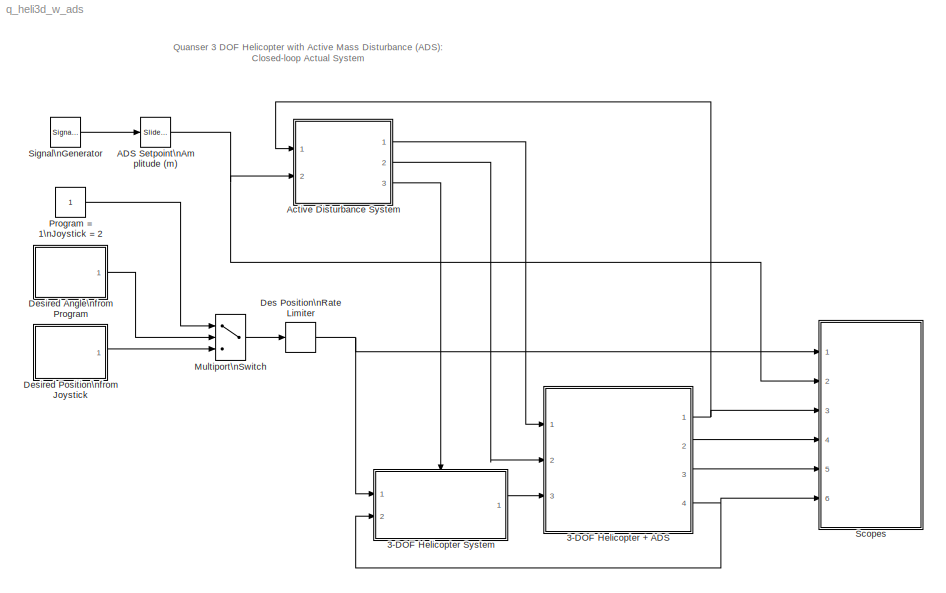
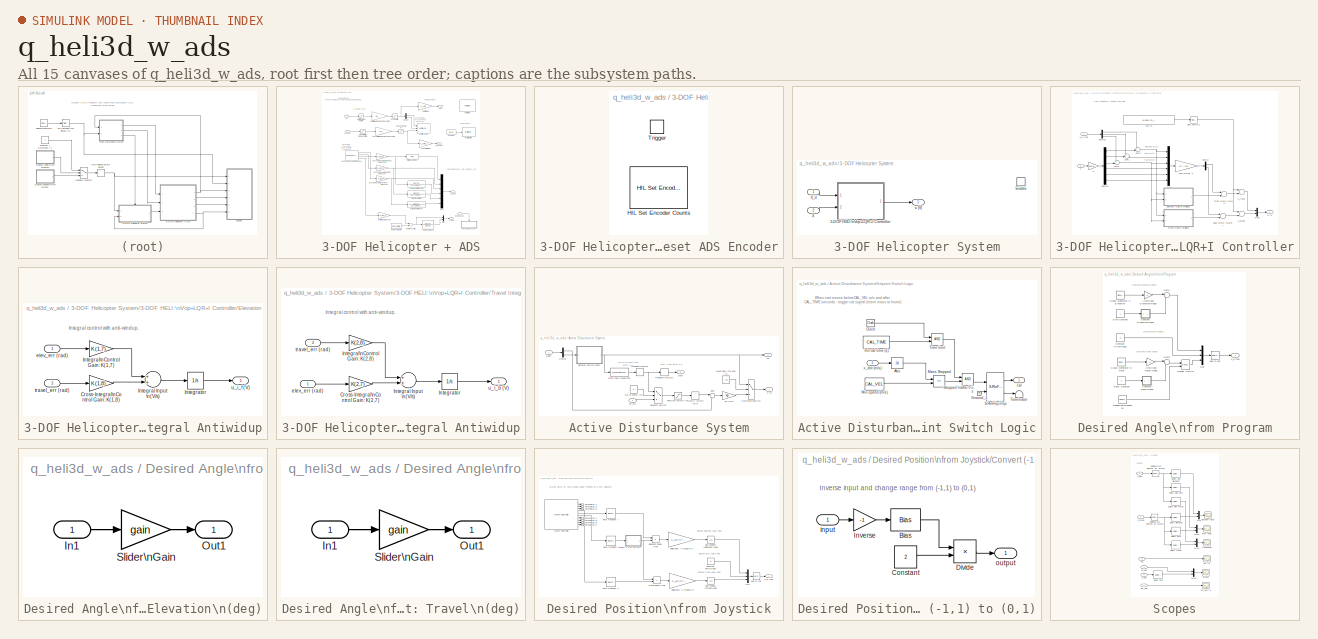
[diagram: thumbnail index - all 15 canvases of the model, root first then tree order]
MODEL q_heli3d_w_ads
KIND model
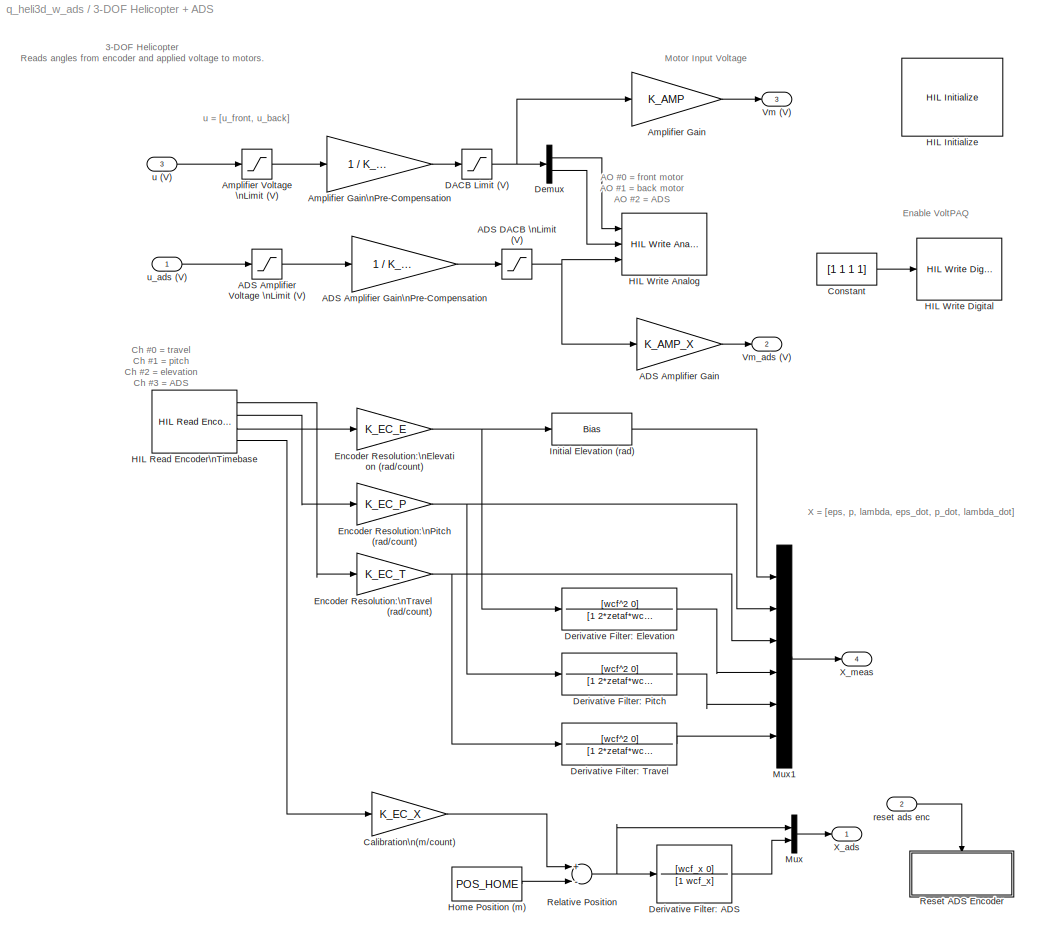
BLOCK [SubSystem] 3-DOF Helicopter + ADS
  FunctionWithSeparateData = off
  MaskHideContents = off
  MinAlgLoopOccurrences = off
  Opaque = off
  Ports = [3, 4]
  PropExecContextOutsideSubsystem = off
  RTWSystemCode = Auto
  RequestExecContextInheritance = off
  SID = 1
BLOCK [Gain] 3-DOF Helicopter + ADS/ADS Amplifier Gain
  Gain = K_AMP_X
  SID = 5
BLOCK [Gain] 3-DOF Helicopter + ADS/ADS Amplifier Gain\nPre-Compensation
  Gain = 1 / K_AMP_X
  SID = 6
BLOCK [Saturate] 3-DOF Helicopter + ADS/ADS Amplifier Voltage \nLimit (V)
  InputPortMap = u0
  LowerLimit = -VMAX_AMP_X
  Ports = [1, 1]
  SID = 7
  UpperLimit = VMAX_AMP_X
BLOCK [Saturate] 3-DOF Helicopter + ADS/ADS DACB \nLimit (V)
  InputPortMap = u0
  LowerLimit = -VMAX_DAC
  Ports = [1, 1]
  SID = 8
  UpperLimit = VMAX_DAC
BLOCK [Gain] 3-DOF Helicopter + ADS/Amplifier Gain
  Gain = K_AMP
  Multiplication = Matrix(K*u)
  SID = 9
BLOCK [Gain] 3-DOF Helicopter + ADS/Amplifier Gain\nPre-Compensation
  Gain = 1 / K_AMP
  Multiplication = Matrix(K*u)
  SID = 10
BLOCK [Saturate] 3-DOF Helicopter + ADS/Amplifier Voltage \nLimit (V)
  InputPortMap = u0
  LowerLimit = -VMAX_AMP
  Ports = [1, 1]
  SID = 11
  UpperLimit = VMAX_AMP
BLOCK [Gain] 3-DOF Helicopter + ADS/Calibration\n(m//count)
  Gain = K_EC_X
  SID = 12
BLOCK [Constant] 3-DOF Helicopter + ADS/Constant
  SID = 13
  Value = [1 1 1 1]
BLOCK [Saturate] 3-DOF Helicopter + ADS/DACB Limit (V)
  InputPortMap = u0
  LowerLimit = -VMAX_DAC
  Ports = [1, 1]
  SID = 14
  UpperLimit = VMAX_DAC
BLOCK [Demux] 3-DOF Helicopter + ADS/Demux
  DisplayOption = bar
  Outputs = 2
  Ports = [1, 2]
  SID = 15
BLOCK [TransferFcn] 3-DOF Helicopter + ADS/Derivative Filter: ADS
  Denominator = [1 wcf_x]
  Numerator = [wcf_x 0]
  SID = 16
BLOCK [TransferFcn] 3-DOF Helicopter + ADS/Derivative Filter: Elevation
  Denominator = [1 2*zetaf*wcf wcf^2]
  Numerator = [wcf^2 0]
  SID = 17
BLOCK [TransferFcn] 3-DOF Helicopter + ADS/Derivative Filter: Pitch
  Denominator = [1 2*zetaf*wcf wcf^2]
  Numerator = [wcf^2 0]
  SID = 18
BLOCK [TransferFcn] 3-DOF Helicopter + ADS/Derivative Filter: Travel
  Denominator = [1 2*zetaf*wcf wcf^2]
  Numerator = [wcf^2 0]
  SID = 19
BLOCK [Gain] 3-DOF Helicopter + ADS/Encoder Resolution:\nElevation (rad//count)
  Gain = K_EC_E
  OutDataTypeStr = Inherit: Inherit via internal rule
  ParamDataTypeStr = Inherit: Inherit via internal rule
  SID = 20
  SaturateOnIntegerOverflow = off
BLOCK [Gain] 3-DOF Helicopter + ADS/Encoder Resolution:\nPitch (rad//count)
  Gain = K_EC_P
  OutDataTypeStr = Inherit: Inherit via internal rule
  ParamDataTypeStr = Inherit: Inherit via internal rule
  SID = 21
  SaturateOnIntegerOverflow = off
BLOCK [Gain] 3-DOF Helicopter + ADS/Encoder Resolution:\nTravel (rad//count)
  Gain = K_EC_T
  OutDataTypeStr = Inherit: Inherit via internal rule
  ParamDataTypeStr = Inherit: Inherit via internal rule
  SID = 22
  SaturateOnIntegerOverflow = off
BLOCK [Reference] 3-DOF Helicopter + ADS/HIL Initialize  REF=quarc_library/Data Acquisition/Generic/Configuration/HIL Initialize
  AttributesFormatString = %<object_name> (%<board_type>-%<board_number>)
  Ports = []
  SID = 23
  SourceBlock = quarc_library/Data Acquisition/Generic/Configuration/HIL Initialize
  SourceType = HIL Initialize
  UserData = DataTag0
  UserDataPersistent = on
  active = on
  analog_input_channels = [0:7]
  analog_input_maximums = 10
  analog_input_minimums = -10
  analog_output_channels = [0:7]
  analog_output_maximums = 10
  analog_output_minimums = -10
  board_number = 0
  board_options = update_rate=normal
  board_type = q8_usb
  clock_modes = []
  digital_input_channels = []
  digital_output_channels = [0:2]
  digital_output_configuration = []
  encoder_channels = [0:7]
  encoder_filter_frequency = []
  exclusive = off
  final_analog_outputs = [0]
  final_digital_outputs = [0 0 0]
  final_other_outputs = []
  final_pwm_outputs = [0]
  hardware_clocks = [0:2]
  initial_analog_outputs = [0]
  initial_clock_frequencies = []
  initial_digital_outputs = [0 0 0]
  initial_encoder_counts = [0]
  initial_other_outputs = []
  initial_pwm_outputs = [0]
  object_name = HIL-1
  other_output_channels = []
  pwm_alignment = [0]
  pwm_channels = [0:7]
  pwm_configuration = [0]
  pwm_frequency = 99.532799999999995e6/4095
  pwm_leading_deadband = [0]
  pwm_modes = 0
  pwm_polarity = [1]
  pwm_trailing_deadband = [0]
  quadrature = [4]
  set_analog_input_params_at_start = on
  set_analog_input_params_at_switch_in = off
  set_analog_output_params_at_start = on
  set_analog_output_params_at_switch_in = off
  set_analog_outputs_at_start = on
  set_analog_outputs_at_switch_in = off
  set_analog_outputs_at_switch_out = off
  set_analog_outputs_at_terminate = on
  set_analog_outputs_on_watchdog = off
  set_clock_frequencies_at_start = off
  set_clock_frequencies_at_switch_in = off
  set_clock_params_at_start = off
  set_clock_params_at_switch_in = off
  set_digital_output_params_at_start = off
  set_digital_output_params_at_switch_in = off
  set_digital_outputs_at_start = on
  set_digital_outputs_at_switch_in = off
  set_digital_outputs_at_switch_out = off
  set_digital_outputs_at_terminate = on
  set_digital_outputs_on_watchdog = off
  set_encoder_counts_at_start = on
  set_encoder_counts_at_switch_in = off
  set_encoder_params_at_start = on
  set_encoder_params_at_switch_in = off
  set_other_outputs_at_start = off
  set_other_outputs_at_switch_in = off
  set_other_outputs_at_switch_out = off
  set_other_outputs_at_terminate = off
  set_other_outputs_on_watchdog = off
  set_pwm_outputs_at_start = on
  set_pwm_outputs_at_switch_in = off
  set_pwm_outputs_at_switch_out = off
  set_pwm_outputs_at_terminate = on
  set_pwm_outputs_on_watchdog = off
  set_pwm_params_at_start = on
  set_pwm_params_at_switch_in = off
  watchdog_analog_outputs = 0
  watchdog_digital_outputs = [1]
  watchdog_other_outputs = []
  watchdog_pwm_outputs = [0]
BLOCK [Reference] 3-DOF Helicopter + ADS/HIL Read Encoder\nTimebase  REF=quarc_library/Data Acquisition/Generic/Timebases/HIL Read Encoder\nTimebase
  AttributesFormatString = (%<object_name>)
  Ports = [0, 4]
  SID = 24
  SourceBlock = quarc_library/Data Acquisition/Generic/Timebases/HIL Read Encoder\nTimebase
  SourceType = HIL Read Encoder Timebase
  UserData = DataTag1
  UserDataPersistent = on
  active = on
  channels = [0:3]
  clock = 0
  data_type = double
  data_type_mode = Inherit via back propagation
  object_name = HIL-1
  samples_in_buffer = max(ceil(1/qc_get_step_size), 1)
  vector_output = off
BLOCK [Reference] 3-DOF Helicopter + ADS/HIL Write Analog  REF=quarc_library/Data Acquisition/Generic/Immediate I//O/HIL Write Analog
  AttributesFormatString = (%<object_name>)
  Ports = [3]
  SID = 25
  SourceBlock = quarc_library/Data Acquisition/Generic/Immediate I//O/HIL Write Analog
  SourceType = HIL Write Analog
  UserData = DataTag2
  UserDataPersistent = on
  active = off
  channels = [0:2]
  object_name = HIL-1
  sample_time = -1
  vector_input = off
BLOCK [Reference] 3-DOF Helicopter + ADS/HIL Write Digital  REF=quarc_library/Data Acquisition/Generic/Immediate I//O/HIL Write Digital
  AttributesFormatString = (%<object_name>)
  Ports = [1]
  SID = 26
  SourceBlock = quarc_library/Data Acquisition/Generic/Immediate I//O/HIL Write Digital
  SourceType = HIL Write Digital
  UserData = DataTag3
  UserDataPersistent = on
  active = off
  channels = [0:3]
  object_name = HIL-1
  sample_time = -1
  vector_input = on
BLOCK [Constant] 3-DOF Helicopter + ADS/Home Position (m)
  SID = 27
  Value = POS_HOME
BLOCK [Bias] 3-DOF Helicopter + ADS/Initial Elevation (rad)
  Bias = elev_0
  SID = 28
  SaturateOnIntegerOverflow = off
BLOCK [Mux] 3-DOF Helicopter + ADS/Mux
  DisplayOption = bar
  Inputs = 2
  Ports = [2, 1]
  SID = 29
BLOCK [Mux] 3-DOF Helicopter + ADS/Mux1
  DisplayOption = bar
  Inputs = 6
  Ports = [6, 1]
  SID = 30
BLOCK [Sum] 3-DOF Helicopter + ADS/Relative Position
  Inputs = +-
  Ports = [2, 1]
  SID = 31
BLOCK [SubSystem] 3-DOF Helicopter + ADS/Reset ADS Encoder
  FunctionWithSeparateData = off
  MaskHideContents = off
  MinAlgLoopOccurrences = off
  Opaque = off
  Ports = [0, 0, 0, 1]
  PropExecContextOutsideSubsystem = off
  RTWSystemCode = Auto
  RequestExecContextInheritance = off
  SID = 32
  TreatAsAtomicUnit = on
BLOCK [Reference] 3-DOF Helicopter + ADS/Reset ADS Encoder/HIL Set Encoder Counts  REF=quarc_library/Data Acquisition/Generic/Configuration/HIL Set Encoder Counts
  AttributesFormatString = (%<object_name>)
  Ports = []
  SID = 34
  SourceBlock = quarc_library/Data Acquisition/Generic/Configuration/HIL Set Encoder Counts
  SourceType = HIL Set Encoder Counts
  UserData = DataTag4
  UserDataPersistent = on
  active = on
  channels = 3
  counts = 0
  object_name = HIL-1
  sample_time = -1
  source = internal
  vector_input = off
BLOCK [TriggerPort] 3-DOF Helicopter + ADS/Reset ADS Encoder/Trigger
  Ports = []
  SID = 33
  StatesWhenEnabling = held
BLOCK [Outport] 3-DOF Helicopter + ADS/Vm (V)
  IconDisplay = Port number
  Port = 3
  SID = 37
BLOCK [Outport] 3-DOF Helicopter + ADS/Vm_ads (V)
  IconDisplay = Port number
  Port = 2
  SID = 36
BLOCK [Outport] 3-DOF Helicopter + ADS/X_ads
  IconDisplay = Port number
  SID = 35
BLOCK [Outport] 3-DOF Helicopter + ADS/X_meas
  IconDisplay = Port number
  Port = 4
  SID = 38
BLOCK [Inport] 3-DOF Helicopter + ADS/reset ads enc
  IconDisplay = Port number
  Port = 2
  SID = 3
BLOCK [Inport] 3-DOF Helicopter + ADS/u (V)
  IconDisplay = Port number
  Port = 3
  SID = 4
BLOCK [Inport] 3-DOF Helicopter + ADS/u_ads (V)
  IconDisplay = Port number
  SID = 2
BLOCK [SubSystem] 3-DOF Helicopter System
  FunctionWithSeparateData = off
  MaskHideContents = off
  MinAlgLoopOccurrences = off
  Opaque = off
  Ports = [2, 1, 1]
  PropExecContextOutsideSubsystem = off
  RTWSystemCode = Auto
  RequestExecContextInheritance = off
  SID = 39
BLOCK [SubSystem] 3-DOF Helicopter System/3-DOF HELI:\nVop+LQR+I Controller
  FunctionWithSeparateData = off
  MaskHideContents = off
  MinAlgLoopOccurrences = off
  Opaque = off
  Ports = [2, 1]
  PropExecContextOutsideSubsystem = off
  RTWSystemCode = Auto
  RequestExecContextInheritance = off
  SID = 43
BLOCK [Gain] 3-DOF Helicopter System/3-DOF HELI:\nVop+LQR+I Controller/-X
  Gain = -eye(6,6)
  Multiplication = Matrix(K*u)
  OutDataTypeStr = Inherit: Inherit via internal rule
  ParamDataTypeStr = Inherit: Inherit via internal rule
  SID = 46
  SaturateOnIntegerOverflow = off
BLOCK [Sum] 3-DOF Helicopter System/3-DOF HELI:\nVop+LQR+I Controller/Back Motor:\nLQR+I
  InputSameDT = off
  OutDataTypeStr = Inherit: Inherit via internal rule
  Ports = [2, 1]
  SID = 47
  SaturateOnIntegerOverflow = off
BLOCK [Reference] 3-DOF Helicopter System/3-DOF HELI:\nVop+LQR+I Controller/Bias Adj\n(V//V)  REF=simulink/Math\nOperations/Slider\nGain
  FunctionWithSeparateData = off
  GeneratePreprocessorConditionals = off
  Ports = [1, 1]
  RTWMemSecDataConstants = Inherit from model
  RTWMemSecDataInternal = Inherit from model
  RTWMemSecDataParameters = Inherit from model
  RTWMemSecFuncExecute = Inherit from model
  RTWMemSecFuncInitTerm = Inherit from model
  SID = 48
  ShowPortLabels = FromPortIcon
  SourceBlock = simulink/Math\nOperations/Slider\nGain
  SourceType = Slider Gain
  SystemSampleTime = -1
  gain = 1
  high = 1
  low = 0
BLOCK [Gain] 3-DOF Helicopter System/3-DOF HELI:\nVop+LQR+I Controller/Control Gain: K
  Gain = K(:,1:6)
  Multiplication = Matrix(K*u)
  OutDataTypeStr = Inherit: Inherit via internal rule
  ParamDataTypeStr = Inherit: Inherit via internal rule
  SID = 49
  SaturateOnIntegerOverflow = off
BLOCK [Demux] 3-DOF Helicopter System/3-DOF HELI:\nVop+LQR+I Controller/Demux
  DisplayOption = bar
  Outputs = 2
  Ports = [1, 2]
  SID = 50
BLOCK [Demux] 3-DOF Helicopter System/3-DOF HELI:\nVop+LQR+I Controller/Demux1
  DisplayOption = bar
  Outputs = 6
  Ports = [1, 6]
  SID = 51
BLOCK [Demux] 3-DOF Helicopter System/3-DOF HELI:\nVop+LQR+I Controller/Demux2
  DisplayOption = bar
  Outputs = 3
  Ports = [1, 3]
  SID = 52
BLOCK [SubSystem] 3-DOF Helicopter System/3-DOF HELI:\nVop+LQR+I Controller/Elevation Integral Antiwidup
  FunctionWithSeparateData = off
  MaskHideContents = off
  MinAlgLoopOccurrences = off
  Opaque = off
  Ports = [2, 1]
  PropExecContextOutsideSubsystem = off
  RTWSystemCode = Auto
  RequestExecContextInheritance = off
  SID = 53
BLOCK [Gain] 3-DOF Helicopter System/3-DOF HELI:\nVop+LQR+I Controller/Elevation Integral Antiwidup/Cross-Integral\nControl Gain: K(1,8)
  Gain = K(1,8)
  Multiplication = Matrix(K*u)
  OutDataTypeStr = Inherit: Inherit via internal rule
  ParamDataTypeStr = Inherit: Inherit via internal rule
  SID = 56
  SaturateOnIntegerOverflow = off
BLOCK [Sum] 3-DOF Helicopter System/3-DOF HELI:\nVop+LQR+I Controller/Elevation Integral Antiwidup/Integral Input \n(V//s)
  InputSameDT = off
  OutDataTypeStr = Inherit: Inherit via internal rule
  Ports = [2, 1]
  SID = 58
  SaturateOnIntegerOverflow = off
BLOCK [Gain] 3-DOF Helicopter System/3-DOF HELI:\nVop+LQR+I Controller/Elevation Integral Antiwidup/Integral\nControl Gain: K(1,7)
  Gain = K(1,7)
  Multiplication = Matrix(K*u)
  OutDataTypeStr = Inherit: Inherit via internal rule
  ParamDataTypeStr = Inherit: Inherit via internal rule
  SID = 57
  SaturateOnIntegerOverflow = off
BLOCK [Integrator] 3-DOF Helicopter System/3-DOF HELI:\nVop+LQR+I Controller/Elevation Integral Antiwidup/Integrator
  LimitOutput = on
  LowerSaturationLimit = -SAT_INT_ERR_ELEV
  Ports = [1, 1]
  SID = 59
  UpperSaturationLimit = SAT_INT_ERR_ELEV
BLOCK [Inport] 3-DOF Helicopter System/3-DOF HELI:\nVop+LQR+I Controller/Elevation Integral Antiwidup/elev_err (rad)
  IconDisplay = Port number
  SID = 54
BLOCK [Inport] 3-DOF Helicopter System/3-DOF HELI:\nVop+LQR+I Controller/Elevation Integral Antiwidup/travel_err (rad)
  IconDisplay = Port number
  Port = 2
  SID = 55
BLOCK [Outport] 3-DOF Helicopter System/3-DOF HELI:\nVop+LQR+I Controller/Elevation Integral Antiwidup/u_i_f (V)
  IconDisplay = Port number
  SID = 60
BLOCK [Sum] 3-DOF Helicopter System/3-DOF HELI:\nVop+LQR+I Controller/Front Motor:\nLQR+I
  InputSameDT = off
  OutDataTypeStr = Inherit: Inherit via internal rule
  Ports = [2, 1]
  SID = 61
  SaturateOnIntegerOverflow = off
BLOCK [Mux] 3-DOF Helicopter System/3-DOF HELI:\nVop+LQR+I Controller/Mux
  DisplayOption = bar
  Inputs = 6
  Ports = [6, 1]
  SID = 62
BLOCK [Mux] 3-DOF Helicopter System/3-DOF HELI:\nVop+LQR+I Controller/Mux1
  DisplayOption = bar
  Inputs = 2
  Ports = [2, 1]
  SID = 63
BLOCK [Sum] 3-DOF Helicopter System/3-DOF HELI:\nVop+LQR+I Controller/Sum1
  IconShape = round
  InputSameDT = off
  Inputs = ++|
  OutDataTypeStr = Inherit: Inherit via internal rule
  Ports = [2, 1]
  SID = 64
  SaturateOnIntegerOverflow = off
BLOCK [Sum] 3-DOF Helicopter System/3-DOF HELI:\nVop+LQR+I Controller/Sum2
  IconShape = round
  InputSameDT = off
  Inputs = ++|
  OutDataTypeStr = Inherit: Inherit via internal rule
  Ports = [2, 1]
  SID = 65
  SaturateOnIntegerOverflow = off
BLOCK [Sum] 3-DOF Helicopter System/3-DOF HELI:\nVop+LQR+I Controller/Sum3
  IconShape = round
  InputSameDT = off
  Inputs = ++|
  OutDataTypeStr = Inherit: Inherit via internal rule
  Ports = [2, 1]
  SID = 66
  SaturateOnIntegerOverflow = off
BLOCK [SubSystem] 3-DOF Helicopter System/3-DOF HELI:\nVop+LQR+I Controller/Travel Integral Antiwidup
  FunctionWithSeparateData = off
  MaskHideContents = off
  MinAlgLoopOccurrences = off
  Opaque = off
  Ports = [2, 1]
  PropExecContextOutsideSubsystem = off
  RTWSystemCode = Auto
  RequestExecContextInheritance = off
  SID = 67
BLOCK [Gain] 3-DOF Helicopter System/3-DOF HELI:\nVop+LQR+I Controller/Travel Integral Antiwidup/Cross-Integral\nControl Gain: K(2,7)
  Gain = K(2,7)
  Multiplication = Matrix(K*u)
  OutDataTypeStr = Inherit: Inherit via internal rule
  ParamDataTypeStr = Inherit: Inherit via internal rule
  SID = 70
  SaturateOnIntegerOverflow = off
BLOCK [Sum] 3-DOF Helicopter System/3-DOF HELI:\nVop+LQR+I Controller/Travel Integral Antiwidup/Integral Input \n(V//s)
  InputSameDT = off
  OutDataTypeStr = Inherit: Inherit via internal rule
  Ports = [2, 1]
  SID = 72
  SaturateOnIntegerOverflow = off
BLOCK [Gain] 3-DOF Helicopter System/3-DOF HELI:\nVop+LQR+I Controller/Travel Integral Antiwidup/Integral\nControl Gain: K(2,8)
  Gain = K(2,8)
  Multiplication = Matrix(K*u)
  OutDataTypeStr = Inherit: Inherit via internal rule
  ParamDataTypeStr = Inherit: Inherit via internal rule
  SID = 71
  SaturateOnIntegerOverflow = off
BLOCK [Integrator] 3-DOF Helicopter System/3-DOF HELI:\nVop+LQR+I Controller/Travel Integral Antiwidup/Integrator
  LimitOutput = on
  LowerSaturationLimit = -SAT_INT_ERR_TRAVEL
  Ports = [1, 1]
  SID = 73
  UpperSaturationLimit = SAT_INT_ERR_TRAVEL
BLOCK [Inport] 3-DOF Helicopter System/3-DOF HELI:\nVop+LQR+I Controller/Travel Integral Antiwidup/elev_err (rad)
  IconDisplay = Port number
  SID = 68
BLOCK [Inport] 3-DOF Helicopter System/3-DOF HELI:\nVop+LQR+I Controller/Travel Integral Antiwidup/travel_err (rad)
  IconDisplay = Port number
  Port = 2
  SID = 69
BLOCK [Outport] 3-DOF Helicopter System/3-DOF HELI:\nVop+LQR+I Controller/Travel Integral Antiwidup/u_i_b (V)
  IconDisplay = Port number
  SID = 74
BLOCK [Constant] 3-DOF Helicopter System/3-DOF HELI:\nVop+LQR+I Controller/Vop (V)
  SID = 75
  Value = -1/2*g*(-m_w*Lw + m_f*La + m_b*La ) / (La*Kf)
BLOCK [Inport] 3-DOF Helicopter System/3-DOF HELI:\nVop+LQR+I Controller/X
  IconDisplay = Port number
  Port = 2
  SID = 45
BLOCK [Inport] 3-DOF Helicopter System/3-DOF HELI:\nVop+LQR+I Controller/X_d (rad)
  IconDisplay = Port number
  SID = 44
BLOCK [Outport] 3-DOF Helicopter System/3-DOF HELI:\nVop+LQR+I Controller/u (V)
  IconDisplay = Port number
  SID = 78
BLOCK [Sum] 3-DOF Helicopter System/3-DOF HELI:\nVop+LQR+I Controller/u_b+Vop
  InputSameDT = off
  OutDataTypeStr = Inherit: Inherit via internal rule
  Ports = [2, 1]
  SID = 76
  SaturateOnIntegerOverflow = off
BLOCK [Sum] 3-DOF Helicopter System/3-DOF HELI:\nVop+LQR+I Controller/u_f+Vop
  InputSameDT = off
  OutDataTypeStr = Inherit: Inherit via internal rule
  Ports = [2, 1]
  SID = 77
  SaturateOnIntegerOverflow = off
BLOCK [EnablePort] 3-DOF Helicopter System/Enable
  Ports = []
  SID = 42
BLOCK [Inport] 3-DOF Helicopter System/X
  IconDisplay = Port number
  Port = 2
  SID = 41
BLOCK [Inport] 3-DOF Helicopter System/X_d
  IconDisplay = Port number
  SID = 40
BLOCK [Outport] 3-DOF Helicopter System/u (V)
  IconDisplay = Port number
  InitialOutput = [0,0]
  OutputWhenDisabled = reset
  SID = 79
BLOCK [Reference] ADS Setpoint\nAmplitude (m)  REF=simulink/Math\nOperations/Slider\nGain
  FunctionWithSeparateData = off
  GeneratePreprocessorConditionals = off
  Ports = [1, 1]
  RTWMemSecDataConstants = Inherit from model
  RTWMemSecDataInternal = Inherit from model
  RTWMemSecDataParameters = Inherit from model
  RTWMemSecFuncExecute = Inherit from model
  RTWMemSecFuncInitTerm = Inherit from model
  SID = 80
  ShowPortLabels = FromPortIcon
  SourceBlock = simulink/Math\nOperations/Slider\nGain
  SourceType = Slider Gain
  SystemSampleTime = -1
  gain = 0.10963
  high = 0.13
  low = 0
BLOCK [SubSystem] Active Disturbance System
  FunctionWithSeparateData = off
  MaskHideContents = off
  MinAlgLoopOccurrences = off
  Opaque = off
  Ports = [2, 3]
  PropExecContextOutsideSubsystem = off
  RTWSystemCode = Auto
  RequestExecContextInheritance = off
  SID = 81
BLOCK [MultiPortSwitch] Active Disturbance System/Calibrate\nSwitch
  DataPortOrder = Zero-based contiguous
  Inputs = 2
  Ports = [3, 1]
  SID = 84
  zeroidx = on
BLOCK [DataTypeConversion] Active Disturbance System/Data Type Conversion
  RndMeth = Floor
  SID = 85
  SaturateOnIntegerOverflow = off
BLOCK [Demux] Active Disturbance System/Demux
  DisplayOption = bar
  Outputs = 2
  Ports = [1, 2]
  SID = 86
BLOCK [Constant] Active Disturbance System/Go to center (m)
  SID = 87
  Value = 0
BLOCK [Constant] Active Disturbance System/Move back \nto end (V)
  SID = 88
  Value = -2.5
BLOCK [Saturate] Active Disturbance System/Position \nLimit (m)
  InputPortMap = u0
  LowerLimit = -X_MAX
  Ports = [1, 1]
  SID = 89
  UpperLimit = X_MAX
BLOCK [MultiPortSwitch] Active Disturbance System/Setpoint Switch
  DataPortOrder = Zero-based contiguous
  Inputs = 2
  Ports = [3, 1]
  SID = 90
  SampleTime = qc_get_step_size
  zeroidx = on
BLOCK [SubSystem] Active Disturbance System/Setpoint Switch Logic
  FunctionWithSeparateData = off
  MaskHideContents = off
  MinAlgLoopOccurrences = off
  Opaque = off
  Ports = [1, 1]
  PropExecContextOutsideSubsystem = off
  RTWSystemCode = Auto
  RequestExecContextInheritance = off
  SID = 91
BLOCK [Abs] Active Disturbance System/Setpoint Switch Logic/Abs
  SID = 93
BLOCK [Clock] Active Disturbance System/Setpoint Switch Logic/Clock
  Decimation = 10
  SID = 94
BLOCK [Ground] Active Disturbance System/Setpoint Switch Logic/Ground_1
  SID = 95
BLOCK [Constant] Active Disturbance System/Setpoint Switch Logic/Init Cal time (s)
  SID = 96
  Value = CAL_TIME
BLOCK [RelationalOperator] Active Disturbance System/Setpoint Switch Logic/Mass Stopped
  Operator = <=
  Ports = [2, 1]
  SID = 97
BLOCK [Constant] Active Disturbance System/Setpoint Switch Logic/Min speed (m//s)
  SID = 98
  Value = CAL_VEL
BLOCK [Reference] Active Disturbance System/Setpoint Switch Logic/S-R\nFlip-Flop  REF=simulink_extras/Flip Flops/S-R\nFlip-Flop
  FunctionWithSeparateData = off
  GeneratePreprocessorConditionals = off
  Ports = [2, 2]
  RTWMemSecDataConstants = Inherit from model
  RTWMemSecDataInternal = Inherit from model
  RTWMemSecDataParameters = Inherit from model
  RTWMemSecFuncExecute = Inherit from model
  RTWMemSecFuncInitTerm = Inherit from model
  SID = 99
  ShowPortLabels = FromPortIcon
  SourceBlock = simulink_extras/Flip Flops/S-R\nFlip-Flop
  SourceType = SRFlipFlop
  SystemSampleTime = -1
  initial_condition = 0
BLOCK [Logic] Active Disturbance System/Setpoint Switch Logic/Stopped \nafter 0.5 s
  Ports = [2, 1]
  SID = 100
BLOCK [Terminator] Active Disturbance System/Setpoint Switch Logic/Terminator
  SID = 101
BLOCK [RelationalOperator] Active Disturbance System/Setpoint Switch Logic/Time limit
  Ports = [2, 1]
  SID = 102
BLOCK [Outport] Active Disturbance System/Setpoint Switch Logic/cal
  IconDisplay = Port number
  SID = 103
BLOCK [Inport] Active Disturbance System/Setpoint Switch Logic/x_dot (m//s)
  IconDisplay = Port number
  SID = 92
BLOCK [Sum] Active Disturbance System/Sum
  IconShape = round
  InputSameDT = off
  Inputs = |+-
  OutDataTypeStr = Inherit: Inherit via internal rule
  Ports = [2, 1]
  SID = 104
  SaturateOnIntegerOverflow = off
BLOCK [TransportDelay] Active Disturbance System/Transport\nDelay
  DelayTime = 2
  Ports = [1, 1]
  SID = 105
BLOCK [TransportDelay] Active Disturbance System/Transport\nDelay1
  DelayTime = 2
  Ports = [1, 1]
  SID = 106
BLOCK [RateLimiter] Active Disturbance System/Velocity \nLimit (m//s)
  FallingSlewLimit = -V_MAX
  RisingSlewLimit = V_MAX
  SID = 107
BLOCK [Inport] Active Disturbance System/X_ads
  IconDisplay = Port number
  SID = 82
BLOCK [Outport] Active Disturbance System/cal
  IconDisplay = Port number
  Port = 2
  SID = 110
BLOCK [Gain] Active Disturbance System/kp (V//m)
  Gain = kp
  SID = 108
BLOCK [Outport] Active Disturbance System/start
  IconDisplay = Port number
  Port = 3
  SID = 111
BLOCK [Outport] Active Disturbance System/u (V)
  IconDisplay = Port number
  SID = 109
BLOCK [Inport] Active Disturbance System/xd (m)
  IconDisplay = Port number
  Port = 2
  SID = 83
BLOCK [RateLimiter] Des Position\nRate Limiter
  FallingSlewLimit = -CMD_RATE_LIMIT
  RisingSlewLimit = CMD_RATE_LIMIT
  SID = 112
  SampleTimeMode = inherited
BLOCK [SubSystem] Desired Angle\nfrom Program
  FunctionWithSeparateData = off
  MaskHideContents = off
  MinAlgLoopOccurrences = off
  Opaque = off
  Ports = [0, 1]
  PropExecContextOutsideSubsystem = off
  RTWSystemCode = Auto
  RequestExecContextInheritance = off
  SID = 216
BLOCK [Gain] Desired Angle\nfrom Program/Amplitude: Elevation\n(deg)
  Gain = 0
  OutDataTypeStr = Inherit: Inherit via internal rule
  ParamDataTypeStr = Inherit: Inherit via internal rule
  SID = 217
  SaturateOnIntegerOverflow = off
BLOCK [Gain] Desired Angle\nfrom Program/Amplitude: Travel\n(deg)
  Gain = 0
  OutDataTypeStr = Inherit: Inherit via internal rule
  ParamDataTypeStr = Inherit: Inherit via internal rule
  SID = 218
  SaturateOnIntegerOverflow = off
BLOCK [SubSystem] Desired Angle\nfrom Program/Constant: Elevation\n(deg)
  CloseFcn = slideg Close
  CopyFcn = slideg Copy
  DeleteFcn = slideg DeleteBlock
  FunctionWithSeparateData = off
  LoadFcn = slideg Load
  MaskCallbackString = ||
  MaskCapabilities = slmaskedcaps(gcbh)
  MaskDisplay = disp(gain)
  MaskEnableString = on,on,on
  MaskHideContents = off
  MaskIconFrame = on
  MaskIconOpaque = on
  MaskIconRotate = none
  MaskIconUnits = autoscale
  MaskPortRotate = default
  MaskPromptString = Low|Gain|High
  MaskStyleString = edit,edit,edit
  MaskToolTipString = on,on,on
  MaskTunableValueString = on,on,on
  MaskType = Slider Gain
  MaskValueString = -27.5|-27.5|30
  MaskVariables = low=@1;gain=@2;high=@3;
  MaskVisibilityString = on,on,on
  MinAlgLoopOccurrences = off
  NameChangeFcn = slideg NameChange
  Opaque = off
  OpenFcn = slideg Open
  ParentCloseFcn = slideg ParentClose
  Ports = [1, 1]
  PropExecContextOutsideSubsystem = off
  RTWSystemCode = Auto
  RequestExecContextInheritance = off
  SID = 219
  StartFcn = slideg StartFcn
  StopFcn = slideg StopFcn
BLOCK [Inport] Desired Angle\nfrom Program/Constant: Elevation\n(deg)/In1
  IconDisplay = Port number
  SID = 220
BLOCK [Outport] Desired Angle\nfrom Program/Constant: Elevation\n(deg)/Out1
  IconDisplay = Port number
  SID = 222
BLOCK [Gain] Desired Angle\nfrom Program/Constant: Elevation\n(deg)/Slider\nGain
  Gain = gain
  SID = 221
BLOCK [Constant] Desired Angle\nfrom Program/Constant: Pitch\n(deg)
  SID = 223
  Value = 0
BLOCK [SubSystem] Desired Angle\nfrom Program/Constant: Travel\n(deg)
  CloseFcn = slideg Close
  CopyFcn = slideg Copy
  DeleteFcn = slideg DeleteBlock
  FunctionWithSeparateData = off
  LoadFcn = slideg Load
  MaskCallbackString = ||
  MaskCapabilities = slmaskedcaps(gcbh)
  MaskDisplay = disp(gain)
  MaskEnableString = on,on,on
  MaskHideContents = off
  MaskIconFrame = on
  MaskIconOpaque = on
  MaskIconRotate = none
  MaskIconUnits = autoscale
  MaskPortRotate = default
  MaskPromptString = Low|Gain|High
  MaskStyleString = edit,edit,edit
  MaskToolTipString = on,on,on
  MaskTunableValueString = on,on,on
  MaskType = Slider Gain
  MaskValueString = -90|0|90
  MaskVariables = low=@1;gain=@2;high=@3;
  MaskVisibilityString = on,on,on
  MinAlgLoopOccurrences = off
  NameChangeFcn = slideg NameChange
  Opaque = off
  OpenFcn = slideg Open
  ParentCloseFcn = slideg ParentClose
  Ports = [1, 1]
  PropExecContextOutsideSubsystem = off
  RTWSystemCode = Auto
  RequestExecContextInheritance = off
  SID = 224
  StartFcn = slideg StartFcn
  StopFcn = slideg StopFcn
BLOCK [Inport] Desired Angle\nfrom Program/Constant: Travel\n(deg)/In1
  IconDisplay = Port number
  SID = 225
BLOCK [Outport] Desired Angle\nfrom Program/Constant: Travel\n(deg)/Out1
  IconDisplay = Port number
  SID = 227
BLOCK [Gain] Desired Angle\nfrom Program/Constant: Travel\n(deg)/Slider\nGain
  Gain = gain
  SID = 226
BLOCK [Constant] Desired Angle\nfrom Program/Elev Constant
  SID = 228
BLOCK [Reference] Desired Angle\nfrom Program/Manual Switch  REF=simulink/Signal\nRouting/Manual Switch
  FunctionWithSeparateData = off
  GeneratePreprocessorConditionals = off
  Ports = [2, 1]
  RTWMemSecDataConstants = Inherit from model
  RTWMemSecDataInternal = Inherit from model
  RTWMemSecDataParameters = Inherit from model
  RTWMemSecFuncExecute = Inherit from model
  RTWMemSecFuncInitTerm = Inherit from model
  SID = 229
  ShowPortLabels = FromPortIcon
  SourceBlock = simulink/Signal\nRouting/Manual Switch
  SourceType = Manual Switch
  SystemSampleTime = -1
  action = 0
  sw = 1
  varsize = off
BLOCK [Mux] Desired Angle\nfrom Program/Mux
  DisplayOption = bar
  Inputs = 3
  Ports = [3, 1]
  SID = 230
BLOCK [Reference] Desired Angle\nfrom Program/Repeating\nSequence  REF=simulink/Sources/Repeating\nSequence
  FunctionWithSeparateData = off
  GeneratePreprocessorConditionals = off
  Ports = [0, 1]
  RTWMemSecDataConstants = Inherit from model
  RTWMemSecDataInternal = Inherit from model
  RTWMemSecDataParameters = Inherit from model
  RTWMemSecFuncExecute = Inherit from model
  RTWMemSecFuncInitTerm = Inherit from model
  SID = 231
  ShowPortLabels = FromPortIcon
  SourceBlock = simulink/Sources/Repeating\nSequence
  SourceType = Repeating table
  SystemSampleTime = -1
  rep_seq_t = [0  15 16  30  45  46 60 ]
  rep_seq_y = [0 0 30 30  30 0 0 ]
BLOCK [SignalGenerator] Desired Angle\nfrom Program/Signal Generator:\nElevation
  Frequency = 0.04
  Ports = [0, 1]
  SID = 232
  WaveForm = square
BLOCK [SignalGenerator] Desired Angle\nfrom Program/Signal Generator:\nTravel
  Frequency = 0.03
  Ports = [0, 1]
  SID = 233
  WaveForm = square
BLOCK [Sum] Desired Angle\nfrom Program/Sum1
  IconShape = round
  InputSameDT = off
  Inputs = |++
  OutDataTypeStr = Inherit: Inherit via internal rule
  Ports = [2, 1]
  SID = 234
  SaturateOnIntegerOverflow = off
BLOCK [Sum] Desired Angle\nfrom Program/Sum2
  IconShape = round
  InputSameDT = off
  Inputs = |++
  OutDataTypeStr = Inherit: Inherit via internal rule
  Ports = [2, 1]
  SID = 235
  SaturateOnIntegerOverflow = off
BLOCK [Constant] Desired Angle\nfrom Program/Travel Constant
  SID = 236
BLOCK [Reference] Desired Angle\nfrom Program/deg to rad  REF=simulink_extras/Transformations/Degrees to\nRadians
  FunctionWithSeparateData = off
  GeneratePreprocessorConditionals = off
  Ports = [1, 1]
  RTWMemSecDataConstants = Inherit from model
  RTWMemSecDataInternal = Inherit from model
  RTWMemSecDataParameters = Inherit from model
  RTWMemSecFuncExecute = Inherit from model
  RTWMemSecFuncInitTerm = Inherit from model
  SID = 237
  ShowPortLabels = FromPortIcon
  SourceBlock = simulink_extras/Transformations/Degrees to\nRadians
  SourceType = DegreesToRadians
  SystemSampleTime = -1
BLOCK [Outport] Desired Angle\nfrom Program/x_d (rad)
  IconDisplay = Port number
  SID = 238
BLOCK [SubSystem] Desired Position\nfrom Joystick
  FunctionWithSeparateData = off
  MaskHideContents = off
  MinAlgLoopOccurrences = off
  Opaque = off
  Ports = [0, 1]
  PropExecContextOutsideSubsystem = off
  RTWSystemCode = Auto
  RequestExecContextInheritance = off
  SID = 239
BLOCK [Gain] Desired Position\nfrom Joystick/Calibration: X \n(deg//s//V)
  Gain = K_JOYSTICK_X
  OutDataTypeStr = Inherit: Inherit via internal rule
  ParamDataTypeStr = Inherit: Inherit via internal rule
  SID = 240
  SaturateOnIntegerOverflow = off
BLOCK [Gain] Desired Position\nfrom Joystick/Calibration: Y \n(deg//s//V)
  Gain = K_JOYSTICK_Y
  OutDataTypeStr = Inherit: Inherit via internal rule
  ParamDataTypeStr = Inherit: Inherit via internal rule
  SID = 241
  SaturateOnIntegerOverflow = off
BLOCK [Constant] Desired Position\nfrom Joystick/Constant: Pitch\n(deg)
  SID = 242
  Value = 0
BLOCK [SubSystem] Desired Position\nfrom Joystick/Convert (-1,1) to (0,1)
  FunctionWithSeparateData = off
  MaskHideContents = off
  MinAlgLoopOccurrences = off
  Opaque = off
  Ports = [1, 1]
  PropExecContextOutsideSubsystem = off
  RTWSystemCode = Auto
  RequestExecContextInheritance = off
  SID = 243
BLOCK [Bias] Desired Position\nfrom Joystick/Convert (-1,1) to (0,1)/Bias
  Bias = 1
  SID = 245
  SaturateOnIntegerOverflow = off
BLOCK [Constant] Desired Position\nfrom Joystick/Convert (-1,1) to (0,1)/Constant
  SID = 246
  Value = 2
BLOCK [Product] Desired Position\nfrom Joystick/Convert (-1,1) to (0,1)/Divide
  InputSameDT = off
  Inputs = */
  OutDataTypeStr = Inherit: Inherit via internal rule
  Ports = [2, 1]
  RndMeth = Floor
  SID = 247
  SaturateOnIntegerOverflow = off
BLOCK [Gain] Desired Position\nfrom Joystick/Convert (-1,1) to (0,1)/Inverse
  Gain = -1
  OutDataTypeStr = Inherit: Inherit via internal rule
  ParamDataTypeStr = Inherit: Inherit via internal rule
  SID = 248
  SaturateOnIntegerOverflow = off
BLOCK [Inport] Desired Position\nfrom Joystick/Convert (-1,1) to (0,1)/input
  IconDisplay = Port number
  SID = 244
BLOCK [Outport] Desired Position\nfrom Joystick/Convert (-1,1) to (0,1)/output
  IconDisplay = Port number
  SID = 249
BLOCK [Integrator] Desired Position\nfrom Joystick/Des Position: \nElevation (deg)
  InitialCondition = elev_0*180/pi
  LimitOutput = on
  LowerSaturationLimit = CMD_ELEV_POS_LIMIT_LOWER
  Ports = [1, 1]
  SID = 250
  UpperSaturationLimit = CMD_ELEV_POS_LIMIT_UPPER
BLOCK [Integrator] Desired Position\nfrom Joystick/Des Position: \nTravel (deg)
  LowerSaturationLimit = CMD_TRAVEL_POS_LIMIT_LOWER
  Ports = [1, 1]
  SID = 251
  UpperSaturationLimit = CMD_TRAVEL_POS_LIMIT_UPPER
BLOCK [Product] Desired Position\nfrom Joystick/Elevation Speed \nAdj
  InputSameDT = off
  OutDataTypeStr = Inherit: Inherit via internal rule
  Ports = [2, 1]
  SID = 252
  SaturateOnIntegerOverflow = off
BLOCK [Reference] Desired Position\nfrom Joystick/Game Controller  REF=quarc_library/Devices/Peripherals/Target/Game Controller
  Ports = [0, 10]
  SID = 253
  SourceBlock = quarc_library/Devices/Peripherals/Target/Game Controller
  SourceType = Game Controller
  auto_center = off
  buffer_size = 12
  controller = 1
  deadzone = []
  enabled = on
  sample_time = max(qc_get_step_size, 0.01)
  saturation = []
BLOCK [Mux] Desired Position\nfrom Joystick/Mux
  DisplayOption = bar
  Inputs = 3
  Ports = [3, 1]
  SID = 254
BLOCK [RateTransition] Desired Position\nfrom Joystick/Rate Transition: x
  SID = 255
BLOCK [RateTransition] Desired Position\nfrom Joystick/Rate Transition: y
  SID = 256
BLOCK [RateTransition] Desired Position\nfrom Joystick/Rate Transition: z
  SID = 257
BLOCK [Terminator] Desired Position\nfrom Joystick/Terminator_1
  SID = 258
BLOCK [Terminator] Desired Position\nfrom Joystick/Terminator_2
  SID = 259
BLOCK [Terminator] Desired Position\nfrom Joystick/Terminator_3
  SID = 260
BLOCK [Terminator] Desired Position\nfrom Joystick/Terminator_4
  SID = 261
BLOCK [Terminator] Desired Position\nfrom Joystick/Terminator_5
  SID = 262
BLOCK [Terminator] Desired Position\nfrom Joystick/Terminator_6
  SID = 263
BLOCK [Terminator] Desired Position\nfrom Joystick/Terminator_7
  SID = 264
BLOCK [Product] Desired Position\nfrom Joystick/Travel Speed \nAdj.
  InputSameDT = off
  OutDataTypeStr = Inherit: Inherit via internal rule
  Ports = [2, 1]
  SID = 265
  SaturateOnIntegerOverflow = off
BLOCK [Reference] Desired Position\nfrom Joystick/deg to rad  REF=simulink_extras/Transformations/Degrees to\nRadians
  FunctionWithSeparateData = off
  GeneratePreprocessorConditionals = off
  Ports = [1, 1]
  RTWMemSecDataConstants = Inherit from model
  RTWMemSecDataInternal = Inherit from model
  RTWMemSecDataParameters = Inherit from model
  RTWMemSecFuncExecute = Inherit from model
  RTWMemSecFuncInitTerm = Inherit from model
  SID = 266
  ShowPortLabels = FromPortIcon
  SourceBlock = simulink_extras/Transformations/Degrees to\nRadians
  SourceType = DegreesToRadians
  SystemSampleTime = -1
BLOCK [Outport] Desired Position\nfrom Joystick/x_d (rad)
  IconDisplay = Port number
  SID = 267
BLOCK [MultiPortSwitch] Multiport\nSwitch
  InputSameDT = off
  Inputs = 2
  Ports = [3, 1]
  SID = 164
  SaturateOnIntegerOverflow = off
  zeroidx = off
BLOCK [Constant] Program = 1\nJoystick = 2
  SID = 165
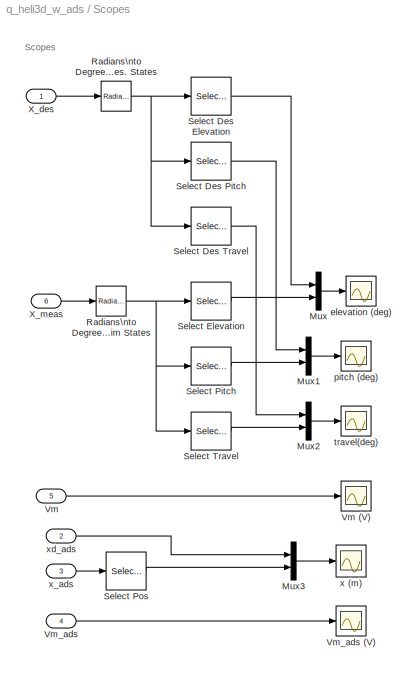
BLOCK [SubSystem] Scopes
  FunctionWithSeparateData = off
  MaskHideContents = off
  MinAlgLoopOccurrences = off
  Opaque = off
  Ports = [6]
  PropExecContextOutsideSubsystem = off
  RTWSystemCode = Auto
  RequestExecContextInheritance = off
  SID = 166
BLOCK [Mux] Scopes/Mux
  DisplayOption = bar
  Inputs = 2
  Ports = [2, 1]
  SID = 173
BLOCK [Mux] Scopes/Mux1
  DisplayOption = bar
  Inputs = 2
  Ports = [2, 1]
  SID = 174
BLOCK [Mux] Scopes/Mux2
  DisplayOption = bar
  Inputs = 2
  Ports = [2, 1]
  SID = 175
BLOCK [Mux] Scopes/Mux3
  DisplayOption = bar
  Inputs = 2
  Ports = [2, 1]
  SID = 176
BLOCK [Reference] Scopes/Radians\nto Degrees -\nDes. States  REF=simulink_extras/Transformations/Radians\nto Degrees
  FunctionWithSeparateData = off
  GeneratePreprocessorConditionals = off
  Ports = [1, 1]
  RTWMemSecDataConstants = Inherit from model
  RTWMemSecDataInternal = Inherit from model
  RTWMemSecDataParameters = Inherit from model
  RTWMemSecFuncExecute = Inherit from model
  RTWMemSecFuncInitTerm = Inherit from model
  SID = 177
  ShowPortLabels = FromPortIcon
  SourceBlock = simulink_extras/Transformations/Radians\nto Degrees
  SourceType = RadiansToDegrees
  SystemSampleTime = -1
BLOCK [Reference] Scopes/Radians\nto Degrees -\nSim States  REF=simulink_extras/Transformations/Radians\nto Degrees
  FunctionWithSeparateData = off
  GeneratePreprocessorConditionals = off
  Ports = [1, 1]
  RTWMemSecDataConstants = Inherit from model
  RTWMemSecDataInternal = Inherit from model
  RTWMemSecDataParameters = Inherit from model
  RTWMemSecFuncExecute = Inherit from model
  RTWMemSecFuncInitTerm = Inherit from model
  SID = 178
  ShowPortLabels = FromPortIcon
  SourceBlock = simulink_extras/Transformations/Radians\nto Degrees
  SourceType = RadiansToDegrees
  SystemSampleTime = -1
BLOCK [Selector] Scopes/Select Des Elevation
  IndexOptions = Index vector (dialog)
  Indices = 1
  InputPortWidth = 3
  OutputSizes = 1
  Ports = [1, 1]
  SID = 179
BLOCK [Selector] Scopes/Select Des Pitch
  IndexOptions = Index vector (dialog)
  Indices = 2
  InputPortWidth = 3
  OutputSizes = 1
  Ports = [1, 1]
  SID = 180
BLOCK [Selector] Scopes/Select Des Travel
  IndexOptions = Index vector (dialog)
  Indices = 3
  InputPortWidth = 3
  OutputSizes = 1
  Ports = [1, 1]
  SID = 181
BLOCK [Selector] Scopes/Select Elevation
  IndexOptions = Index vector (dialog)
  Indices = 1
  InputPortWidth = 6
  OutputSizes = 1
  Ports = [1, 1]
  SID = 182
BLOCK [Selector] Scopes/Select Pitch
  IndexOptions = Index vector (dialog)
  Indices = 2
  InputPortWidth = 6
  OutputSizes = 1
  Ports = [1, 1]
  SID = 183
BLOCK [Selector] Scopes/Select Pos
  IndexOptions = Index vector (dialog)
  Indices = 1
  InputPortWidth = 2
  OutputSizes = 1
  Ports = [1, 1]
  SID = 184
BLOCK [Selector] Scopes/Select Travel
  IndexOptions = Index vector (dialog)
  Indices = 3
  InputPortWidth = 6
  OutputSizes = 1
  Ports = [1, 1]
  SID = 185
BLOCK [Inport] Scopes/Vm
  IconDisplay = Port number
  Port = 5
  SID = 171
BLOCK [Scope] Scopes/Vm (V)
  DataFormat = Array
  Floating = off
  LimitDataPoints = off
  NumInputPorts = 1
  Ports = [1]
  SID = 186
  SampleTime = 0
  SaveName = ScopeData4
  TickLabels = on
  TimeRange = 20
  YMax = 18
  YMin = 0
BLOCK [Inport] Scopes/Vm_ads
  IconDisplay = Port number
  Port = 4
  SID = 170
BLOCK [Scope] Scopes/Vm_ads (V)
  DataFormat = Array
  Floating = off
  LimitDataPoints = off
  NumInputPorts = 1
  Ports = [1]
  SID = 187
  SampleTime = 0
  SaveName = ScopeData3
  TickLabels = on
  TimeRange = 20
  YMax = 18
  YMin = 0
BLOCK [Inport] Scopes/X_des
  IconDisplay = Port number
  SID = 167
BLOCK [Inport] Scopes/X_meas
  IconDisplay = Port number
  Port = 6
  SID = 172
BLOCK [Scope] Scopes/elevation (deg)
  DataFormat = Array
  Floating = off
  LimitDataPoints = off
  NumInputPorts = 1
  Ports = [1]
  SID = 188
  SampleTime = 0
  TickLabels = on
  TimeRange = 20
  YMax = 15
  YMin = -15
BLOCK [Scope] Scopes/pitch (deg)
  DataFormat = Array
  Floating = off
  LimitDataPoints = off
  NumInputPorts = 1
  Ports = [1]
  SID = 189
  SampleTime = 0
  SaveName = ScopeData1
  TickLabels = on
  TimeRange = 20
  YMax = 80
  YMin = -80
BLOCK [Scope] Scopes/travel(deg)
  DataFormat = Array
  Floating = off
  LimitDataPoints = off
  NumInputPorts = 1
  Ports = [1]
  SID = 190
  SampleTime = 0
  SaveName = ScopeData2
  TickLabels = on
  TimeRange = 20
  YMax = 80
  YMin = -80
BLOCK [Scope] Scopes/x (m)
  DataFormat = StructureWithTime
  Floating = off
  NumInputPorts = 1
  Ports = [1]
  SID = 191
  SampleTime = 0
  SaveName = ScopeData5
  YMax = 0.15
  YMin = -0.15
BLOCK [Inport] Scopes/x_ads
  IconDisplay = Port number
  Port = 3
  SID = 169
BLOCK [Inport] Scopes/xd_ads
  IconDisplay = Port number
  Port = 2
  SID = 168
BLOCK [SignalGenerator] Signal\nGenerator
  Frequency = 0.05
  Ports = [0, 1]
  SID = 192
  WaveForm = square
ANNOTATION (root): Quanser 3 DOF Helicopter with Active Mass Disturbance (ADS):\nClosed-loop Actual System
ANNOTATION 3-DOF Helicopter + ADS: 3-DOF Helicopter\nReads angles from encoder and applied voltage to motors.
ANNOTATION 3-DOF Helicopter + ADS: AO #0 = front motor\nAO #1 = back motor\nAO #2 = ADS
ANNOTATION 3-DOF Helicopter + ADS: Ch #0 = travel\nCh #1 = pitch\nCh #2 = elevation\nCh #3 = ADS
ANNOTATION 3-DOF Helicopter + ADS: Enable VoltPAQ
ANNOTATION 3-DOF Helicopter + ADS: Motor Input Voltage
ANNOTATION 3-DOF Helicopter + ADS: X = [eps, p, lambda, eps_dot, p_dot, lambda_dot]
ANNOTATION 3-DOF Helicopter + ADS: u = [u_front, u_back]
ANNOTATION 3-DOF Helicopter System/3-DOF HELI:\nVop+LQR+I Controller: 3-DOF Helicopter: Position Controller
ANNOTATION 3-DOF Helicopter System/3-DOF HELI:\nVop+LQR+I Controller: elevation error
ANNOTATION 3-DOF Helicopter System/3-DOF HELI:\nVop+LQR+I Controller: pitch error
ANNOTATION 3-DOF Helicopter System/3-DOF HELI:\nVop+LQR+I Controller: travel error
ANNOTATION 3-DOF Helicopter System/3-DOF HELI:\nVop+LQR+I Controller/Elevation Integral Antiwidup: Integral control with anti-windup.
ANNOTATION 3-DOF Helicopter System/3-DOF HELI:\nVop+LQR+I Controller/Travel Integral Antiwidup: Integral control with anti-windup.
ANNOTATION Active Disturbance System: Go to HOME 2 sec \nafter CAL
ANNOTATION Active Disturbance System: Start 4 sec after CAL.
ANNOTATION Active Disturbance System/Setpoint Switch Logic: When cart moves below CAL_VEL m/s and after \nCAL_TIME seconds - trigger cal signal (move mass to home)
ANNOTATION Desired Angle\nfrom Program: Desired elevation angle
ANNOTATION Desired Angle\nfrom Program: Desired pitch angle
ANNOTATION Desired Angle\nfrom Program: Desired travel angle
ANNOTATION Desired Position\nfrom Joystick: Desired Elevation Angle (deg)
ANNOTATION Desired Position\nfrom Joystick: Desired Pitch Angle (deg)
ANNOTATION Desired Position\nfrom Joystick: Desired Travel Angle (deg)
ANNOTATION Desired Position\nfrom Joystick: Joystick Setup for Commanding Angular Positions on 3-DOF Helicopter
ANNOTATION Desired Position\nfrom Joystick/Convert (-1,1) to (0,1): Inverse input and change range from (-1,1) to (0,1)
ANNOTATION Scopes: Scopes
LINE 3-DOF Helicopter + ADS/ADS Amplifier Gain:1 -> 3-DOF Helicopter + ADS/Vm_ads (V):1
LINE 3-DOF Helicopter + ADS/ADS Amplifier Gain\nPre-Compensation:1 -> 3-DOF Helicopter + ADS/ADS DACB \nLimit (V):1
LINE 3-DOF Helicopter + ADS/ADS Amplifier Voltage \nLimit (V):1 -> 3-DOF Helicopter + ADS/ADS Amplifier Gain\nPre-Compensation:1
NET 3-DOF Helicopter + ADS/ADS DACB \nLimit (V):1 -> 3-DOF Helicopter + ADS/ADS Amplifier Gain:1, 3-DOF Helicopter + ADS/HIL Write Analog:3
LINE 3-DOF Helicopter + ADS/Amplifier Gain:1 -> 3-DOF Helicopter + ADS/Vm (V):1
LINE 3-DOF Helicopter + ADS/Amplifier Gain\nPre-Compensation:1 -> 3-DOF Helicopter + ADS/DACB Limit (V):1
LINE 3-DOF Helicopter + ADS/Amplifier Voltage \nLimit (V):1 -> 3-DOF Helicopter + ADS/Amplifier Gain\nPre-Compensation:1
LINE 3-DOF Helicopter + ADS/Calibration\n(m//count):1 -> 3-DOF Helicopter + ADS/Relative Position:1
LINE 3-DOF Helicopter + ADS/Constant:1 -> 3-DOF Helicopter + ADS/HIL Write Digital:1
NET 3-DOF Helicopter + ADS/DACB Limit (V):1 -> 3-DOF Helicopter + ADS/Amplifier Gain:1, 3-DOF Helicopter + ADS/Demux:1
LINE 3-DOF Helicopter + ADS/Demux:1 -> 3-DOF Helicopter + ADS/HIL Write Analog:1
LINE 3-DOF Helicopter + ADS/Demux:2 -> 3-DOF Helicopter + ADS/HIL Write Analog:2
LINE 3-DOF Helicopter + ADS/Derivative Filter: ADS:1 -> 3-DOF Helicopter + ADS/Mux:2
LINE 3-DOF Helicopter + ADS/Derivative Filter: Elevation:1 -> 3-DOF Helicopter + ADS/Mux1:4
LINE 3-DOF Helicopter + ADS/Derivative Filter: Pitch:1 -> 3-DOF Helicopter + ADS/Mux1:5
LINE 3-DOF Helicopter + ADS/Derivative Filter: Travel:1 -> 3-DOF Helicopter + ADS/Mux1:6
NET 3-DOF Helicopter + ADS/Encoder Resolution:\nElevation (rad//count):1 -> 3-DOF Helicopter + ADS/Derivative Filter: Elevation:1, 3-DOF Helicopter + ADS/Initial Elevation (rad):1
NET 3-DOF Helicopter + ADS/Encoder Resolution:\nPitch (rad//count):1 -> 3-DOF Helicopter + ADS/Derivative Filter: Pitch:1, 3-DOF Helicopter + ADS/Mux1:2
NET 3-DOF Helicopter + ADS/Encoder Resolution:\nTravel (rad//count):1 -> 3-DOF Helicopter + ADS/Derivative Filter: Travel:1, 3-DOF Helicopter + ADS/Mux1:3
LINE 3-DOF Helicopter + ADS/HIL Read Encoder\nTimebase:1 -> 3-DOF Helicopter + ADS/Encoder Resolution:\nTravel (rad//count):1
LINE 3-DOF Helicopter + ADS/HIL Read Encoder\nTimebase:2 -> 3-DOF Helicopter + ADS/Encoder Resolution:\nPitch (rad//count):1
LINE 3-DOF Helicopter + ADS/HIL Read Encoder\nTimebase:3 -> 3-DOF Helicopter + ADS/Encoder Resolution:\nElevation (rad//count):1
LINE 3-DOF Helicopter + ADS/HIL Read Encoder\nTimebase:4 -> 3-DOF Helicopter + ADS/Calibration\n(m//count):1
LINE 3-DOF Helicopter + ADS/Home Position (m):1 -> 3-DOF Helicopter + ADS/Relative Position:2
LINE 3-DOF Helicopter + ADS/Initial Elevation (rad):1 -> 3-DOF Helicopter + ADS/Mux1:1
LINE 3-DOF Helicopter + ADS/Mux1:1 -> 3-DOF Helicopter + ADS/X_meas:1
LINE 3-DOF Helicopter + ADS/Mux:1 -> 3-DOF Helicopter + ADS/X_ads:1
NET 3-DOF Helicopter + ADS/Relative Position:1 -> 3-DOF Helicopter + ADS/Derivative Filter: ADS:1, 3-DOF Helicopter + ADS/Mux:1
LINE 3-DOF Helicopter + ADS/reset ads enc:1 -> 3-DOF Helicopter + ADS/Reset ADS Encoder:trigger
LINE 3-DOF Helicopter + ADS/u (V):1 -> 3-DOF Helicopter + ADS/Amplifier Voltage \nLimit (V):1
LINE 3-DOF Helicopter + ADS/u_ads (V):1 -> 3-DOF Helicopter + ADS/ADS Amplifier Voltage \nLimit (V):1
NET 3-DOF Helicopter + ADS:1 -> Active Disturbance System:1, Scopes:3
LINE 3-DOF Helicopter + ADS:2 -> Scopes:4
LINE 3-DOF Helicopter + ADS:3 -> Scopes:5
NET 3-DOF Helicopter + ADS:4 -> 3-DOF Helicopter System:2, Scopes:6
LINE 3-DOF Helicopter System/3-DOF HELI:\nVop+LQR+I Controller/-X:1 -> 3-DOF Helicopter System/3-DOF HELI:\nVop+LQR+I Controller/Demux1:1
LINE 3-DOF Helicopter System/3-DOF HELI:\nVop+LQR+I Controller/Back Motor:\nLQR+I:1 -> 3-DOF Helicopter System/3-DOF HELI:\nVop+LQR+I Controller/u_b+Vop:2
NET 3-DOF Helicopter System/3-DOF HELI:\nVop+LQR+I Controller/Bias Adj\n(V//V):1 -> 3-DOF Helicopter System/3-DOF HELI:\nVop+LQR+I Controller/u_b+Vop:1, 3-DOF Helicopter System/3-DOF HELI:\nVop+LQR+I Controller/u_f+Vop:1
LINE 3-DOF Helicopter System/3-DOF HELI:\nVop+LQR+I Controller/Control Gain: K:1 -> 3-DOF Helicopter System/3-DOF HELI:\nVop+LQR+I Controller/Demux:1
LINE 3-DOF Helicopter System/3-DOF HELI:\nVop+LQR+I Controller/Demux1:1 -> 3-DOF Helicopter System/3-DOF HELI:\nVop+LQR+I Controller/Sum2:2
LINE 3-DOF Helicopter System/3-DOF HELI:\nVop+LQR+I Controller/Demux1:2 -> 3-DOF Helicopter System/3-DOF HELI:\nVop+LQR+I Controller/Sum1:2
LINE 3-DOF Helicopter System/3-DOF HELI:\nVop+LQR+I Controller/Demux1:3 -> 3-DOF Helicopter System/3-DOF HELI:\nVop+LQR+I Controller/Sum3:2
LINE 3-DOF Helicopter System/3-DOF HELI:\nVop+LQR+I Controller/Demux1:4 -> 3-DOF Helicopter System/3-DOF HELI:\nVop+LQR+I Controller/Mux:4
LINE 3-DOF Helicopter System/3-DOF HELI:\nVop+LQR+I Controller/Demux1:5 -> 3-DOF Helicopter System/3-DOF HELI:\nVop+LQR+I Controller/Mux:5
LINE 3-DOF Helicopter System/3-DOF HELI:\nVop+LQR+I Controller/Demux1:6 -> 3-DOF Helicopter System/3-DOF HELI:\nVop+LQR+I Controller/Mux:6
LINE 3-DOF Helicopter System/3-DOF HELI:\nVop+LQR+I Controller/Demux2:1 -> 3-DOF Helicopter System/3-DOF HELI:\nVop+LQR+I Controller/Sum2:1
LINE 3-DOF Helicopter System/3-DOF HELI:\nVop+LQR+I Controller/Demux2:2 -> 3-DOF Helicopter System/3-DOF HELI:\nVop+LQR+I Controller/Sum1:1
LINE 3-DOF Helicopter System/3-DOF HELI:\nVop+LQR+I Controller/Demux2:3 -> 3-DOF Helicopter System/3-DOF HELI:\nVop+LQR+I Controller/Sum3:1
LINE 3-DOF Helicopter System/3-DOF HELI:\nVop+LQR+I Controller/Demux:1 -> 3-DOF Helicopter System/3-DOF HELI:\nVop+LQR+I Controller/Front Motor:\nLQR+I:1
LINE 3-DOF Helicopter System/3-DOF HELI:\nVop+LQR+I Controller/Demux:2 -> 3-DOF Helicopter System/3-DOF HELI:\nVop+LQR+I Controller/Back Motor:\nLQR+I:1
LINE 3-DOF Helicopter System/3-DOF HELI:\nVop+LQR+I Controller/Elevation Integral Antiwidup/Cross-Integral\nControl Gain: K(1,8):1 -> 3-DOF Helicopter System/3-DOF HELI:\nVop+LQR+I Controller/Elevation Integral Antiwidup/Integral Input \n(V//s):2
LINE 3-DOF Helicopter System/3-DOF HELI:\nVop+LQR+I Controller/Elevation Integral Antiwidup/Integral Input \n(V//s):1 -> 3-DOF Helicopter System/3-DOF HELI:\nVop+LQR+I Controller/Elevation Integral Antiwidup/Integrator:1
LINE 3-DOF Helicopter System/3-DOF HELI:\nVop+LQR+I Controller/Elevation Integral Antiwidup/Integral\nControl Gain: K(1,7):1 -> 3-DOF Helicopter System/3-DOF HELI:\nVop+LQR+I Controller/Elevation Integral Antiwidup/Integral Input \n(V//s):1
LINE 3-DOF Helicopter System/3-DOF HELI:\nVop+LQR+I Controller/Elevation Integral Antiwidup/Integrator:1 -> 3-DOF Helicopter System/3-DOF HELI:\nVop+LQR+I Controller/Elevation Integral Antiwidup/u_i_f (V):1
LINE 3-DOF Helicopter System/3-DOF HELI:\nVop+LQR+I Controller/Elevation Integral Antiwidup/elev_err (rad):1 -> 3-DOF Helicopter System/3-DOF HELI:\nVop+LQR+I Controller/Elevation Integral Antiwidup/Integral\nControl Gain: K(1,7):1
LINE 3-DOF Helicopter System/3-DOF HELI:\nVop+LQR+I Controller/Elevation Integral Antiwidup/travel_err (rad):1 -> 3-DOF Helicopter System/3-DOF HELI:\nVop+LQR+I Controller/Elevation Integral Antiwidup/Cross-Integral\nControl Gain: K(1,8):1
LINE 3-DOF Helicopter System/3-DOF HELI:\nVop+LQR+I Controller/Elevation Integral Antiwidup:1 -> 3-DOF Helicopter System/3-DOF HELI:\nVop+LQR+I Controller/Front Motor:\nLQR+I:2
LINE 3-DOF Helicopter System/3-DOF HELI:\nVop+LQR+I Controller/Front Motor:\nLQR+I:1 -> 3-DOF Helicopter System/3-DOF HELI:\nVop+LQR+I Controller/u_f+Vop:2
LINE 3-DOF Helicopter System/3-DOF HELI:\nVop+LQR+I Controller/Mux1:1 -> 3-DOF Helicopter System/3-DOF HELI:\nVop+LQR+I Controller/u (V):1
LINE 3-DOF Helicopter System/3-DOF HELI:\nVop+LQR+I Controller/Mux:1 -> 3-DOF Helicopter System/3-DOF HELI:\nVop+LQR+I Controller/Control Gain: K:1
LINE 3-DOF Helicopter System/3-DOF HELI:\nVop+LQR+I Controller/Sum1:1 -> 3-DOF Helicopter System/3-DOF HELI:\nVop+LQR+I Controller/Mux:2
NET 3-DOF Helicopter System/3-DOF HELI:\nVop+LQR+I Controller/Sum2:1 -> 3-DOF Helicopter System/3-DOF HELI:\nVop+LQR+I Controller/Elevation Integral Antiwidup:1, 3-DOF Helicopter System/3-DOF HELI:\nVop+LQR+I Controller/Mux:1, 3-DOF Helicopter System/3-DOF HELI:\nVop+LQR+I Controller/Travel Integral Antiwidup:1
NET 3-DOF Helicopter System/3-DOF HELI:\nVop+LQR+I Controller/Sum3:1 -> 3-DOF Helicopter System/3-DOF HELI:\nVop+LQR+I Controller/Elevation Integral Antiwidup:2, 3-DOF Helicopter System/3-DOF HELI:\nVop+LQR+I Controller/Mux:3, 3-DOF Helicopter System/3-DOF HELI:\nVop+LQR+I Controller/Travel Integral Antiwidup:2
LINE 3-DOF Helicopter System/3-DOF HELI:\nVop+LQR+I Controller/Travel Integral Antiwidup/Cross-Integral\nControl Gain: K(2,7):1 -> 3-DOF Helicopter System/3-DOF HELI:\nVop+LQR+I Controller/Travel Integral Antiwidup/Integral Input \n(V//s):2
LINE 3-DOF Helicopter System/3-DOF HELI:\nVop+LQR+I Controller/Travel Integral Antiwidup/Integral Input \n(V//s):1 -> 3-DOF Helicopter System/3-DOF HELI:\nVop+LQR+I Controller/Travel Integral Antiwidup/Integrator:1
LINE 3-DOF Helicopter System/3-DOF HELI:\nVop+LQR+I Controller/Travel Integral Antiwidup/Integral\nControl Gain: K(2,8):1 -> 3-DOF Helicopter System/3-DOF HELI:\nVop+LQR+I Controller/Travel Integral Antiwidup/Integral Input \n(V//s):1
LINE 3-DOF Helicopter System/3-DOF HELI:\nVop+LQR+I Controller/Travel Integral Antiwidup/Integrator:1 -> 3-DOF Helicopter System/3-DOF HELI:\nVop+LQR+I Controller/Travel Integral Antiwidup/u_i_b (V):1
LINE 3-DOF Helicopter System/3-DOF HELI:\nVop+LQR+I Controller/Travel Integral Antiwidup/elev_err (rad):1 -> 3-DOF Helicopter System/3-DOF HELI:\nVop+LQR+I Controller/Travel Integral Antiwidup/Cross-Integral\nControl Gain: K(2,7):1
LINE 3-DOF Helicopter System/3-DOF HELI:\nVop+LQR+I Controller/Travel Integral Antiwidup/travel_err (rad):1 -> 3-DOF Helicopter System/3-DOF HELI:\nVop+LQR+I Controller/Travel Integral Antiwidup/Integral\nControl Gain: K(2,8):1
LINE 3-DOF Helicopter System/3-DOF HELI:\nVop+LQR+I Controller/Travel Integral Antiwidup:1 -> 3-DOF Helicopter System/3-DOF HELI:\nVop+LQR+I Controller/Back Motor:\nLQR+I:2
LINE 3-DOF Helicopter System/3-DOF HELI:\nVop+LQR+I Controller/Vop (V):1 -> 3-DOF Helicopter System/3-DOF HELI:\nVop+LQR+I Controller/Bias Adj\n(V//V):1
LINE 3-DOF Helicopter System/3-DOF HELI:\nVop+LQR+I Controller/X:1 -> 3-DOF Helicopter System/3-DOF HELI:\nVop+LQR+I Controller/-X:1
LINE 3-DOF Helicopter System/3-DOF HELI:\nVop+LQR+I Controller/X_d (rad):1 -> 3-DOF Helicopter System/3-DOF HELI:\nVop+LQR+I Controller/Demux2:1
LINE 3-DOF Helicopter System/3-DOF HELI:\nVop+LQR+I Controller/u_b+Vop:1 -> 3-DOF Helicopter System/3-DOF HELI:\nVop+LQR+I Controller/Mux1:2
LINE 3-DOF Helicopter System/3-DOF HELI:\nVop+LQR+I Controller/u_f+Vop:1 -> 3-DOF Helicopter System/3-DOF HELI:\nVop+LQR+I Controller/Mux1:1
LINE 3-DOF Helicopter System/3-DOF HELI:\nVop+LQR+I Controller:1 -> 3-DOF Helicopter System/u (V):1
LINE 3-DOF Helicopter System/X:1 -> 3-DOF Helicopter System/3-DOF HELI:\nVop+LQR+I Controller:2
LINE 3-DOF Helicopter System/X_d:1 -> 3-DOF Helicopter System/3-DOF HELI:\nVop+LQR+I Controller:1
LINE 3-DOF Helicopter System:1 -> 3-DOF Helicopter + ADS:3
NET ADS Setpoint\nAmplitude (m):1 -> Active Disturbance System:2, Scopes:2
LINE Active Disturbance System/Calibrate\nSwitch:1 -> Active Disturbance System/u (V):1
LINE Active Disturbance System/Data Type Conversion:1 -> Active Disturbance System/Transport\nDelay:1
LINE Active Disturbance System/Demux:1 -> Active Disturbance System/Sum:2
LINE Active Disturbance System/Demux:2 -> Active Disturbance System/Setpoint Switch Logic:1
LINE Active Disturbance System/Go to center (m):1 -> Active Disturbance System/Setpoint Switch:2
LINE Active Disturbance System/Move back \nto end (V):1 -> Active Disturbance System/Calibrate\nSwitch:2
LINE Active Disturbance System/Position \nLimit (m):1 -> Active Disturbance System/Velocity \nLimit (m//s):1
LINE Active Disturbance System/Setpoint Switch Logic/Abs:1 -> Active Disturbance System/Setpoint Switch Logic/Mass Stopped:1
LINE Active Disturbance System/Setpoint Switch Logic/Clock:1 -> Active Disturbance System/Setpoint Switch Logic/Time limit:1
LINE Active Disturbance System/Setpoint Switch Logic/Ground_1:1 -> Active Disturbance System/Setpoint Switch Logic/S-R\nFlip-Flop:2
LINE Active Disturbance System/Setpoint Switch Logic/Init Cal time (s):1 -> Active Disturbance System/Setpoint Switch Logic/Time limit:2
LINE Active Disturbance System/Setpoint Switch Logic/Mass Stopped:1 -> Active Disturbance System/Setpoint Switch Logic/Stopped \nafter 0.5 s:2
LINE Active Disturbance System/Setpoint Switch Logic/Min speed (m//s):1 -> Active Disturbance System/Setpoint Switch Logic/Mass Stopped:2
LINE Active Disturbance System/Setpoint Switch Logic/S-R\nFlip-Flop:1 -> Active Disturbance System/Setpoint Switch Logic/cal:1
LINE Active Disturbance System/Setpoint Switch Logic/S-R\nFlip-Flop:2 -> Active Disturbance System/Setpoint Switch Logic/Terminator:1
LINE Active Disturbance System/Setpoint Switch Logic/Stopped \nafter 0.5 s:1 -> Active Disturbance System/Setpoint Switch Logic/S-R\nFlip-Flop:1
LINE Active Disturbance System/Setpoint Switch Logic/Time limit:1 -> Active Disturbance System/Setpoint Switch Logic/Stopped \nafter 0.5 s:1
LINE Active Disturbance System/Setpoint Switch Logic/x_dot (m//s):1 -> Active Disturbance System/Setpoint Switch Logic/Abs:1
NET Active Disturbance System/Setpoint Switch Logic:1 -> Active Disturbance System/Calibrate\nSwitch:1, Active Disturbance System/Data Type Conversion:1, Active Disturbance System/cal:1
LINE Active Disturbance System/Setpoint Switch:1 -> Active Disturbance System/Position \nLimit (m):1
LINE Active Disturbance System/Sum:1 -> Active Disturbance System/kp (V//m):1
LINE Active Disturbance System/Transport\nDelay1:1 -> Active Disturbance System/start:1
NET Active Disturbance System/Transport\nDelay:1 -> Active Disturbance System/Setpoint Switch:1, Active Disturbance System/Transport\nDelay1:1
LINE Active Disturbance System/Velocity \nLimit (m//s):1 -> Active Disturbance System/Sum:1
LINE Active Disturbance System/X_ads:1 -> Active Disturbance System/Demux:1
LINE Active Disturbance System/kp (V//m):1 -> Active Disturbance System/Calibrate\nSwitch:3
LINE Active Disturbance System/xd (m):1 -> Active Disturbance System/Setpoint Switch:3
LINE Active Disturbance System:1 -> 3-DOF Helicopter + ADS:1
LINE Active Disturbance System:2 -> 3-DOF Helicopter + ADS:2
LINE Active Disturbance System:3 -> 3-DOF Helicopter System:enable
NET Des Position\nRate Limiter:1 -> 3-DOF Helicopter System:1, Scopes:1
LINE Desired Angle\nfrom Program/Amplitude: Elevation\n(deg):1 -> Desired Angle\nfrom Program/Sum1:1
LINE Desired Angle\nfrom Program/Amplitude: Travel\n(deg):1 -> Desired Angle\nfrom Program/Sum2:1
LINE Desired Angle\nfrom Program/Constant: Elevation\n(deg)/In1:1 -> Desired Angle\nfrom Program/Constant: Elevation\n(deg)/Slider\nGain:1
LINE Desired Angle\nfrom Program/Constant: Elevation\n(deg)/Slider\nGain:1 -> Desired Angle\nfrom Program/Constant: Elevation\n(deg)/Out1:1
LINE Desired Angle\nfrom Program/Constant: Elevation\n(deg):1 -> Desired Angle\nfrom Program/Sum1:2
LINE Desired Angle\nfrom Program/Constant: Pitch\n(deg):1 -> Desired Angle\nfrom Program/Mux:2
LINE Desired Angle\nfrom Program/Constant: Travel\n(deg)/In1:1 -> Desired Angle\nfrom Program/Constant: Travel\n(deg)/Slider\nGain:1
LINE Desired Angle\nfrom Program/Constant: Travel\n(deg)/Slider\nGain:1 -> Desired Angle\nfrom Program/Constant: Travel\n(deg)/Out1:1
LINE Desired Angle\nfrom Program/Constant: Travel\n(deg):1 -> Desired Angle\nfrom Program/Sum2:2
LINE Desired Angle\nfrom Program/Elev Constant:1 -> Desired Angle\nfrom Program/Constant: Elevation\n(deg):1
LINE Desired Angle\nfrom Program/Manual Switch:1 -> Desired Angle\nfrom Program/Mux:3
LINE Desired Angle\nfrom Program/Mux:1 -> Desired Angle\nfrom Program/deg to rad:1
LINE Desired Angle\nfrom Program/Repeating\nSequence:1 -> Desired Angle\nfrom Program/Manual Switch:2
LINE Desired Angle\nfrom Program/Signal Generator:\nElevation:1 -> Desired Angle\nfrom Program/Amplitude: Elevation\n(deg):1
LINE Desired Angle\nfrom Program/Signal Generator:\nTravel:1 -> Desired Angle\nfrom Program/Amplitude: Travel\n(deg):1
LINE Desired Angle\nfrom Program/Sum1:1 -> Desired Angle\nfrom Program/Mux:1
LINE Desired Angle\nfrom Program/Sum2:1 -> Desired Angle\nfrom Program/Manual Switch:1
LINE Desired Angle\nfrom Program/Travel Constant:1 -> Desired Angle\nfrom Program/Constant: Travel\n(deg):1
LINE Desired Angle\nfrom Program/deg to rad:1 -> Desired Angle\nfrom Program/x_d (rad):1
LINE Desired Angle\nfrom Program:1 -> Multiport\nSwitch:2
LINE Desired Position\nfrom Joystick/Calibration: X \n(deg//s//V):1 -> Desired Position\nfrom Joystick/Des Position: \nTravel (deg):1
LINE Desired Position\nfrom Joystick/Calibration: Y \n(deg//s//V):1 -> Desired Position\nfrom Joystick/Des Position: \nElevation (deg):1
LINE Desired Position\nfrom Joystick/Constant: Pitch\n(deg):1 -> Desired Position\nfrom Joystick/Mux:2
LINE Desired Position\nfrom Joystick/Convert (-1,1) to (0,1)/Bias:1 -> Desired Position\nfrom Joystick/Convert (-1,1) to (0,1)/Divide:1
LINE Desired Position\nfrom Joystick/Convert (-1,1) to (0,1)/Constant:1 -> Desired Position\nfrom Joystick/Convert (-1,1) to (0,1)/Divide:2
LINE Desired Position\nfrom Joystick/Convert (-1,1) to (0,1)/Divide:1 -> Desired Position\nfrom Joystick/Convert (-1,1) to (0,1)/output:1
LINE Desired Position\nfrom Joystick/Convert (-1,1) to (0,1)/Inverse:1 -> Desired Position\nfrom Joystick/Convert (-1,1) to (0,1)/Bias:1
LINE Desired Position\nfrom Joystick/Convert (-1,1) to (0,1)/input:1 -> Desired Position\nfrom Joystick/Convert (-1,1) to (0,1)/Inverse:1
NET Desired Position\nfrom Joystick/Convert (-1,1) to (0,1):1 -> Desired Position\nfrom Joystick/Elevation Speed \nAdj:2, Desired Position\nfrom Joystick/Travel Speed \nAdj.:1
LINE Desired Position\nfrom Joystick/Des Position: \nElevation (deg):1 -> Desired Position\nfrom Joystick/Mux:1
LINE Desired Position\nfrom Joystick/Des Position: \nTravel (deg):1 -> Desired Position\nfrom Joystick/Mux:3
LINE Desired Position\nfrom Joystick/Elevation Speed \nAdj:1 -> Desired Position\nfrom Joystick/Calibration: Y \n(deg//s//V):1
LINE Desired Position\nfrom Joystick/Game Controller:1 -> Desired Position\nfrom Joystick/Terminator_1:1
LINE Desired Position\nfrom Joystick/Game Controller:10 -> Desired Position\nfrom Joystick/Terminator_7:1
LINE Desired Position\nfrom Joystick/Game Controller:2 -> Desired Position\nfrom Joystick/Terminator_2:1
LINE Desired Position\nfrom Joystick/Game Controller:3 -> Desired Position\nfrom Joystick/Terminator_3:1
LINE Desired Position\nfrom Joystick/Game Controller:4 -> Desired Position\nfrom Joystick/Rate Transition: x:1
LINE Desired Position\nfrom Joystick/Game Controller:5 -> Desired Position\nfrom Joystick/Rate Transition: y:1
LINE Desired Position\nfrom Joystick/Game Controller:6 -> Desired Position\nfrom Joystick/Rate Transition: z:1
LINE Desired Position\nfrom Joystick/Game Controller:7 -> Desired Position\nfrom Joystick/Terminator_4:1
LINE Desired Position\nfrom Joystick/Game Controller:8 -> Desired Position\nfrom Joystick/Terminator_5:1
LINE Desired Position\nfrom Joystick/Game Controller:9 -> Desired Position\nfrom Joystick/Terminator_6:1
LINE Desired Position\nfrom Joystick/Mux:1 -> Desired Position\nfrom Joystick/deg to rad:1
LINE Desired Position\nfrom Joystick/Rate Transition: x:1 -> Desired Position\nfrom Joystick/Travel Speed \nAdj.:2
LINE Desired Position\nfrom Joystick/Rate Transition: y:1 -> Desired Position\nfrom Joystick/Elevation Speed \nAdj:1
LINE Desired Position\nfrom Joystick/Rate Transition: z:1 -> Desired Position\nfrom Joystick/Convert (-1,1) to (0,1):1
LINE Desired Position\nfrom Joystick/Travel Speed \nAdj.:1 -> Desired Position\nfrom Joystick/Calibration: X \n(deg//s//V):1
LINE Desired Position\nfrom Joystick/deg to rad:1 -> Desired Position\nfrom Joystick/x_d (rad):1
LINE Desired Position\nfrom Joystick:1 -> Multiport\nSwitch:3
LINE Multiport\nSwitch:1 -> Des Position\nRate Limiter:1
LINE Program = 1\nJoystick = 2:1 -> Multiport\nSwitch:1
LINE Scopes/Mux1:1 -> Scopes/pitch (deg):1
LINE Scopes/Mux2:1 -> Scopes/travel(deg):1
LINE Scopes/Mux3:1 -> Scopes/x (m):1
LINE Scopes/Mux:1 -> Scopes/elevation (deg):1
NET Scopes/Radians\nto Degrees -\nDes. States:1 -> Scopes/Select Des Elevation:1, Scopes/Select Des Pitch:1, Scopes/Select Des Travel:1
NET Scopes/Radians\nto Degrees -\nSim States:1 -> Scopes/Select Elevation:1, Scopes/Select Pitch:1, Scopes/Select Travel:1
LINE Scopes/Select Des Elevation:1 -> Scopes/Mux:1
LINE Scopes/Select Des Pitch:1 -> Scopes/Mux1:1
LINE Scopes/Select Des Travel:1 -> Scopes/Mux2:1
LINE Scopes/Select Elevation:1 -> Scopes/Mux:2
LINE Scopes/Select Pitch:1 -> Scopes/Mux1:2
LINE Scopes/Select Pos:1 -> Scopes/Mux3:2
LINE Scopes/Select Travel:1 -> Scopes/Mux2:2
LINE Scopes/Vm:1 -> Scopes/Vm (V):1
LINE Scopes/Vm_ads:1 -> Scopes/Vm_ads (V):1
LINE Scopes/X_des:1 -> Scopes/Radians\nto Degrees -\nDes. States:1
LINE Scopes/X_meas:1 -> Scopes/Radians\nto Degrees -\nSim States:1
LINE Scopes/x_ads:1 -> Scopes/Select Pos:1
LINE Scopes/xd_ads:1 -> Scopes/Mux3:1
LINE Signal\nGenerator:1 -> ADS Setpoint\nAmplitude (m):1
note: NET lines group one-source signal fan-out (src -> all destinations, sorted); 1:1 wires keep LINE
